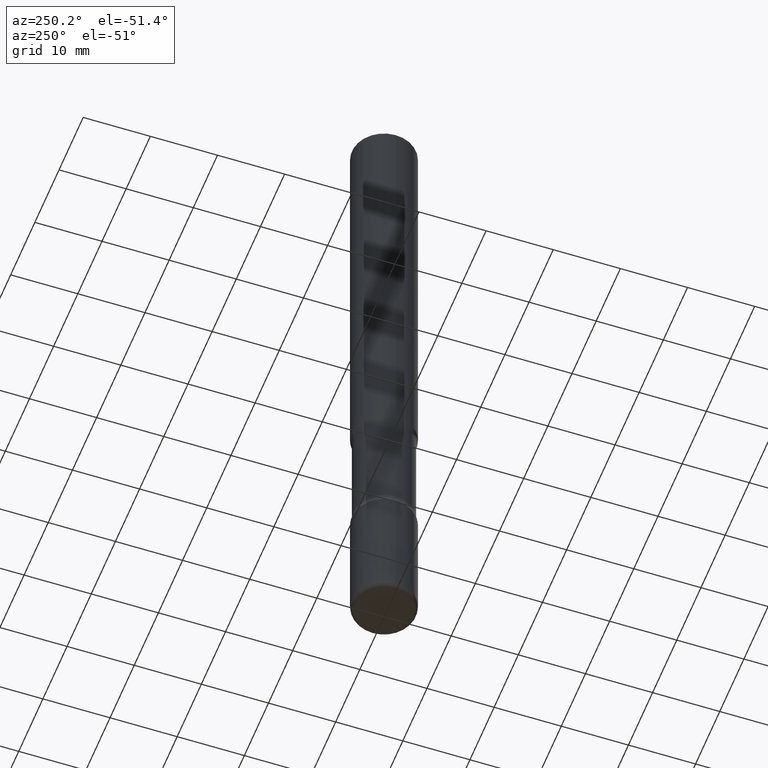
[diagram: clean part render]
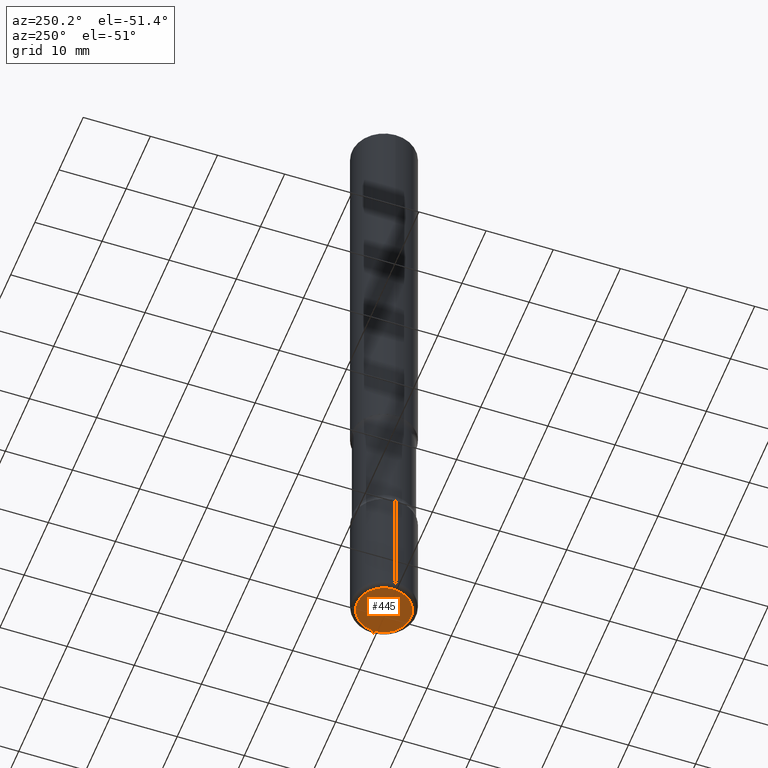
[diagram: same view with one face highlighted and labeled with its STEP entity id]
A machine part, auxiliary view. The second image highlights one B-rep face of the part: STEP entity #445.
In plain terms, the highlighted planar face has unit normal (0, -0, -1).
Its self-contained STEP definition (entity closure, byte-faithful):
#11 = CARTESIAN_POINT ( 'NONE',  ( 9.781875224740546387E-29, -1.396592535537258233E-14, -4.000000000000000000 ) ) ;
#31 = ORIENTED_EDGE ( 'NONE', *, *, #266, .F. ) ;
#80 = AXIS2_PLACEMENT_3D ( 'NONE', #408, #199, #165 ) ;
#126 = CIRCLE ( 'NONE', #80, 0.1575000000000001676 ) ;
#147 = DIRECTION ( 'NONE',  ( 1.000000000000000000, -6.982962677686267499E-15, 0.000000000000000000 ) ) ;
#153 = DIRECTION ( 'NONE',  ( 2.438088387897960049E-29, -3.491481338843145188E-15, -1.000000000000000000 ) ) ;
#165 = DIRECTION ( 'NONE',  ( 1.000000000000000000, -6.982962677686267499E-15, 0.000000000000000000 ) ) ;
#196 = DIRECTION ( 'NONE',  ( -2.445468806185136597E-29, 3.491481338843145583E-15, 1.000000000000000000 ) ) ;
#199 = DIRECTION ( 'NONE',  ( -2.445468806185136597E-29, 3.491481338843145583E-15, 1.000000000000000000 ) ) ;
#206 = EDGE_CURVE ( 'NONE', #285, #391, #477, .T. ) ;
#266 = EDGE_CURVE ( 'NONE', #391, #285, #126, .T. ) ;
#285 = VERTEX_POINT ( 'NONE', #326 ) ;
#296 = ORIENTED_EDGE ( 'NONE', *, *, #206, .F. ) ;
#326 = CARTESIAN_POINT ( 'NONE',  ( 0.1575000000000001676, -1.506574197710817060E-14, -4.000000000000000000 ) ) ;
#337 = AXIS2_PLACEMENT_3D ( 'NONE', #400, #196, #147 ) ;
#391 = VERTEX_POINT ( 'NONE', #443 ) ;
#393 = AXIS2_PLACEMENT_3D ( 'NONE', #11, #153, #488 ) ;
#400 = CARTESIAN_POINT ( 'NONE',  ( 9.781875224740546387E-29, -1.396592535537258233E-14, -4.000000000000000000 ) ) ;
#408 = CARTESIAN_POINT ( 'NONE',  ( 9.781875224740546387E-29, -1.396592535537258233E-14, -4.000000000000000000 ) ) ;
#410 = PLANE ( 'NONE',  #393 ) ;
#443 = CARTESIAN_POINT ( 'NONE',  ( -0.1575000000000001676, -1.268786691610376371E-14, -4.000000000000000000 ) ) ;
#445 = ADVANCED_FACE ( 'NONE', ( #446 ), #410, .T. ) ;
#446 = FACE_OUTER_BOUND ( 'NONE', #552, .T. ) ;
#477 = CIRCLE ( 'NONE', #337, 0.1575000000000001676 ) ;
#488 = DIRECTION ( 'NONE',  ( -1.000000000000000000, 6.982962677686265922E-15, -4.876176775795935793E-29 ) ) ;
#552 = EDGE_LOOP ( 'NONE', ( #296, #31 ) ) ;